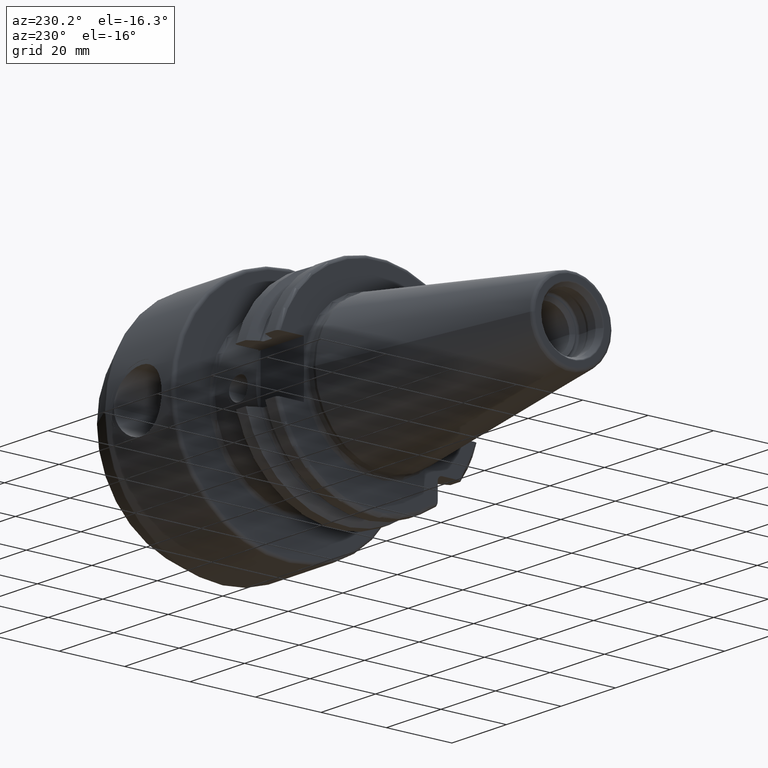
[diagram: clean part render]
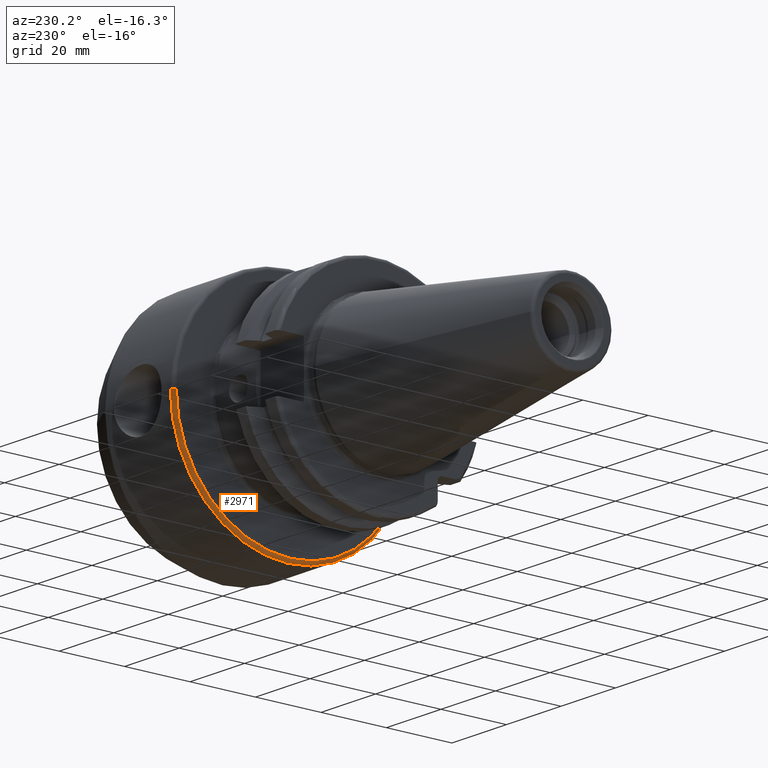
[diagram: same view with one face highlighted and labeled with its STEP entity id]
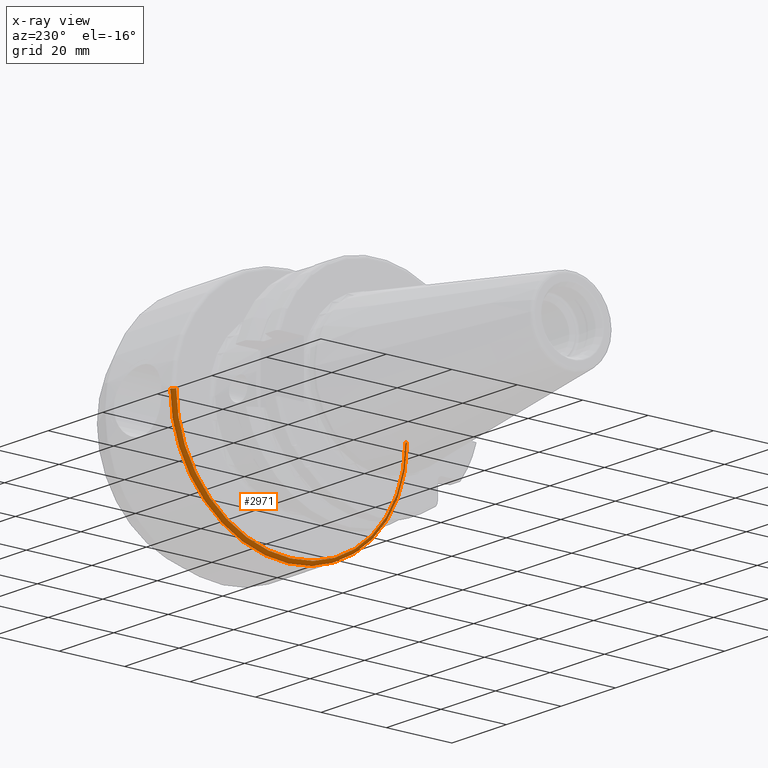
[diagram: x-ray of the same camera — body ghosted, the highlighted face saturated]
A machine part, auxiliary view. The second image highlights one B-rep face of the part: STEP entity #2971.
The next image is the same camera in x-ray: the body ghosted, the highlighted face saturated — about 9% of this face is hidden behind the body in this view.
In plain terms, the highlighted toroidal blend (fillet) surface has major radius 35 mm and minor (blend) radius 1 mm.
Its self-contained STEP definition (entity closure, byte-faithful):
#1161=CARTESIAN_POINT('',(3.505E1,0.E0,0.E0));
#1162=DIRECTION('',(-1.E0,0.E0,0.E0));
#1163=DIRECTION('',(0.E0,1.E0,0.E0));
#1164=AXIS2_PLACEMENT_3D('',#1161,#1162,#1163);
#1171=CARTESIAN_POINT('',(3.605E1,3.5E1,0.E0));
#1172=DIRECTION('',(0.E0,0.E0,-1.E0));
#1173=DIRECTION('',(-1.E0,1.421085471520E-14,0.E0));
#1174=AXIS2_PLACEMENT_3D('',#1171,#1172,#1173);
#1204=CARTESIAN_POINT('',(3.605E1,0.E0,0.E0));
#1205=DIRECTION('',(-1.E0,0.E0,0.E0));
#1206=DIRECTION('',(0.E0,1.E0,0.E0));
#1207=AXIS2_PLACEMENT_3D('',#1204,#1205,#1206);
#1332=CARTESIAN_POINT('',(3.605E1,-3.5E1,0.E0));
#1333=DIRECTION('',(0.E0,0.E0,1.E0));
#1334=DIRECTION('',(-1.E0,0.E0,0.E0));
#1335=AXIS2_PLACEMENT_3D('',#1332,#1333,#1334);
#1821=CARTESIAN_POINT('',(3.605E1,3.6E1,3.445852508657E-12));
#1822=VERTEX_POINT('',#1821);
#1835=CARTESIAN_POINT('',(3.605E1,-3.6E1,0.E0));
#1836=VERTEX_POINT('',#1835);
#1837=CARTESIAN_POINT('',(3.505E1,-3.5E1,0.E0));
#1838=VERTEX_POINT('',#1837);
#1839=CARTESIAN_POINT('',(3.505E1,3.5E1,0.E0));
#1840=VERTEX_POINT('',#1839);
#2957=CARTESIAN_POINT('',(3.605E1,0.E0,0.E0));
#2958=DIRECTION('',(1.E0,0.E0,0.E0));
#2959=DIRECTION('',(0.E0,9.999815917671E-1,6.067629434947E-3));
#2960=AXIS2_PLACEMENT_3D('',#2957,#2958,#2959);
#2961=TOROIDAL_SURFACE('',#2960,3.5E1,1.E0);
#2963=ORIENTED_EDGE('',*,*,#2962,.F.);
#2965=ORIENTED_EDGE('',*,*,#2964,.F.);
#2966=ORIENTED_EDGE('',*,*,#2946,.T.);
#2968=ORIENTED_EDGE('',*,*,#2967,.T.);
#2969=EDGE_LOOP('',(#2963,#2965,#2966,#2968));
#2970=FACE_OUTER_BOUND('',#2969,.F.);
#2971=ADVANCED_FACE('',(#2970),#2961,.T.);
#1165=CIRCLE('',#1164,3.5E1);
#1175=CIRCLE('',#1174,1.E0);
#1208=CIRCLE('',#1207,3.6E1);
#1336=CIRCLE('',#1335,1.E0);
#2946=EDGE_CURVE('',#1840,#1838,#1165,.T.);
#2962=EDGE_CURVE('',#1822,#1836,#1208,.T.);
#2964=EDGE_CURVE('',#1840,#1822,#1175,.T.);
#2967=EDGE_CURVE('',#1838,#1836,#1336,.T.);